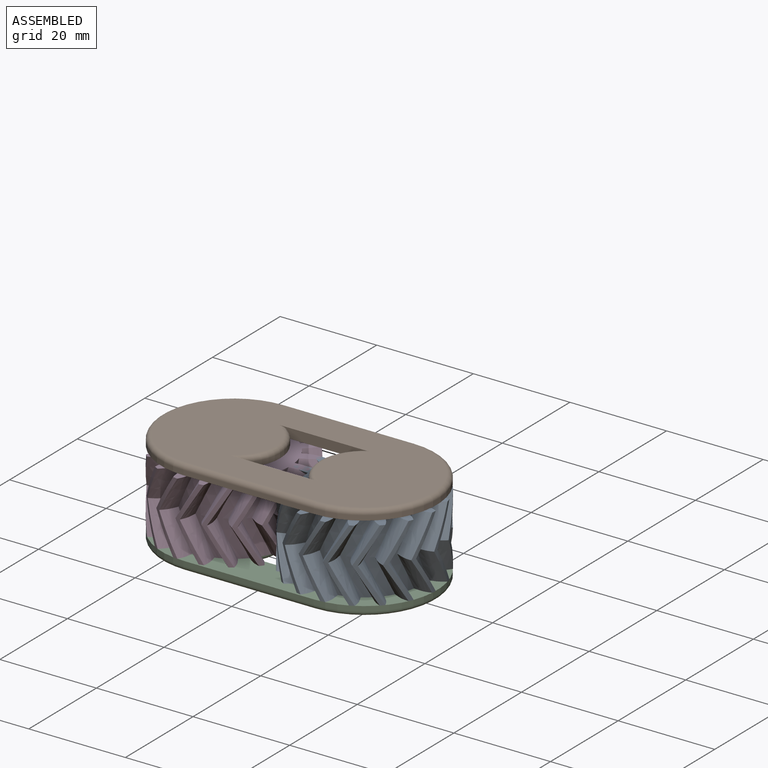
[diagram: assembled view]
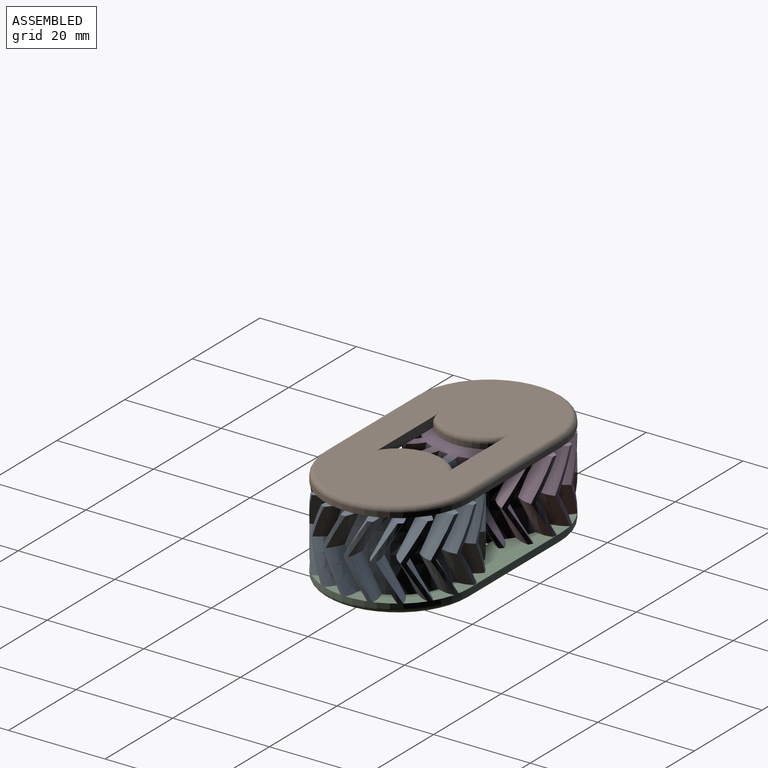
[diagram: assembled view, second angle]
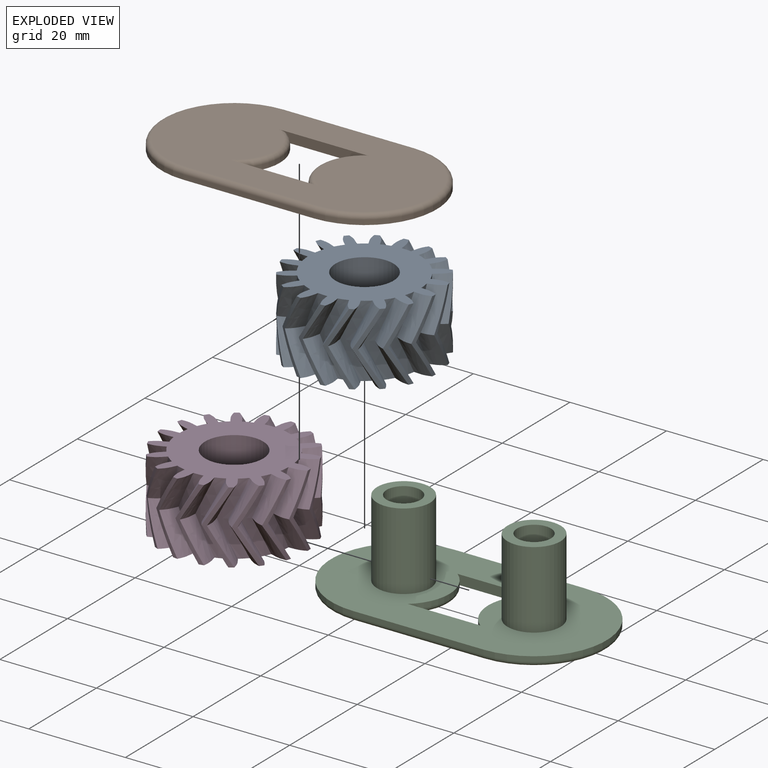
[diagram: exploded view]
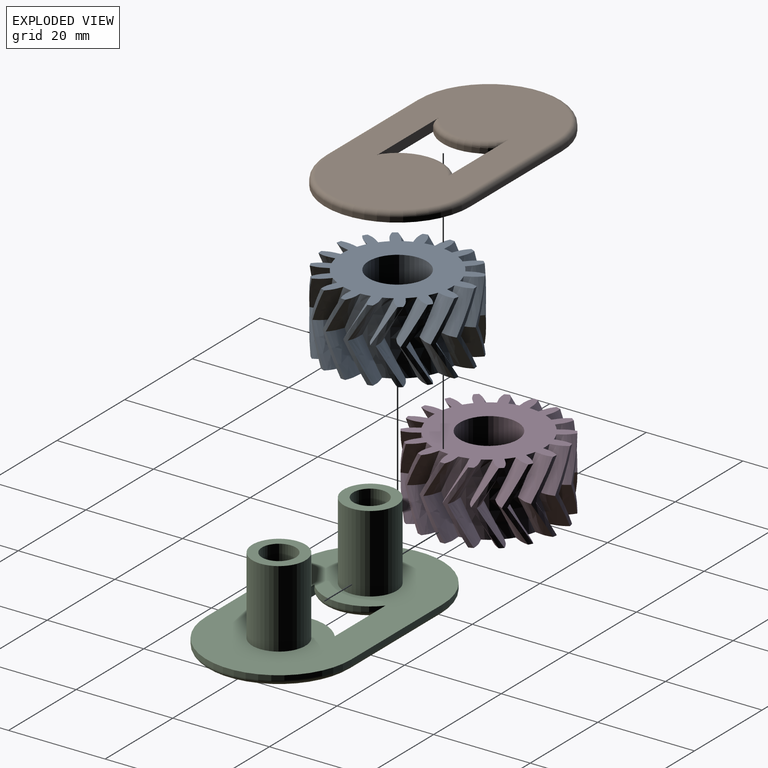
[diagram: exploded view, second angle]
ASSEMBLY  parts=4 mates=3
PART A: 273 faces, bbox 30.4x30.2x15 mm
  f0: bspline ~7.5x4.57mm, area 5.3mm2, adj f1,f15,f25,f145
  f1: bspline ~7.5x4.92mm, area 14.9mm2, adj f0,f2,f25,f146
  f2: bspline ~8.33x4.42mm, area 10.5mm2, adj f1,f3,f25,f147
  f3: bspline ~8.33x5.6mm, area 15.1mm2, adj f2,f4,f25,f148
  f4: bspline ~8.33x4.28mm, area 10.5mm2, adj f3,f5,f25,f149
  f5: bspline ~7.5x4.42mm, area 14.9mm2, adj f4,f6,f25,f150
  f6: bspline ~7.5x4.63mm, area 5.3mm2, adj f5,f14,f25,f151
  f7: cylinder r=15mm len=15mm, axis (0,0,-1), area 14.6mm2, adj f25,f123,f138,f152,f250,f265
  f8: cylinder r=15mm len=15mm, axis (0,0,-1), area 14.6mm2, adj f25,f134,f144,f152,f261,f271
  f9: cylinder r=15mm len=15mm, axis (0,0,-1), area 14.6mm2, adj f25,f67,f124,f152,f194,f251
  f10: cylinder r=15mm len=15mm, axis (0,0,-1), area 14.6mm2, adj f25,f117,f130,f152,f244,f257
  f11: cylinder r=15mm len=15mm, axis (0,0,-1), area 14.6mm2, adj f25,f95,f110,f152,f222,f237
  f12: cylinder r=15mm len=15mm, axis (0,0,-1), area 14.6mm2, adj f25,f96,f133,f152,f223,f260
  f13: cylinder r=15mm len=15mm, axis (0,0,-1), area 14.6mm2, adj f25,f89,f102,f152,f216,f229
  f14: cylinder r=15mm len=15mm, axis (0,0,-1), area 14.6mm2, adj f6,f25,f82,f151,f152,f209
  f15: cylinder r=15mm len=15mm, axis (0,0,-1), area 14.6mm2, adj f0,f25,f53,f145,f152,f180
  f16: cylinder r=15mm len=15mm, axis (0,0,-1), area 14.6mm2, adj f25,f74,f79,f152,f201,f206
  f17: cylinder r=15mm len=15mm, axis (0,0,-1), area 14.6mm2, adj f25,f68,f88,f152,f195,f215
  f18: cylinder r=15mm len=15mm, axis (0,0,-1), area 14.6mm2, adj f25,f32,f61,f152,f159,f188
  f19: cylinder r=15mm len=15mm, axis (0,0,-1), area 14.6mm2, adj f25,f39,f54,f152,f166,f181
  f20: cylinder r=15mm len=15mm, axis (0,0,-1), area 14.6mm2, adj f25,f46,f47,f152,f173,f174
  f21: cylinder r=15mm len=15mm, axis (0,0,-1), area 14.6mm2, adj f25,f40,f60,f152,f167,f187
  f22: cylinder r=15mm len=15mm, axis (0,0,-1), area 14.6mm2, adj f25,f33,f109,f152,f160,f236
  f23: cylinder r=15mm len=15mm, axis (0,0,-1), area 14.6mm2, adj f25,f26,f78,f152,f153,f205
  f24: cylinder r=15mm len=15mm, axis (0,0,-1), area 14.6mm2, adj f25,f103,f116,f152,f230,f243
  f25: plane 30x29.7mm, normal (0,0,1), area 414.1mm2, adj f0,f1,f2,f3,f4,f5,f6,f7
  f26: bspline ~8.33x4.57mm, area 5.3mm2, adj f23,f25,f27,f153
  f27: bspline ~7.5x4.76mm, area 14.9mm2, adj f25,f26,f28,f154
  f28: bspline ~8.33x4.22mm, area 10.5mm2, adj f25,f27,f29,f155
  f29: bspline ~8.33x5.16mm, area 15.1mm2, adj f25,f28,f30,f156
  f30: bspline ~8.33x4.24mm, area 10.5mm2, adj f25,f29,f31,f157
  f31: bspline ~8.33x4.62mm, area 14.9mm2, adj f25,f30,f32,f158
  f32: bspline ~8.33x4.84mm, area 5.3mm2, adj f18,f25,f31,f159
  f33: bspline ~7.5x4.79mm, area 5.3mm2, adj f22,f25,f34,f160
  f34: bspline ~8.33x5.38mm, area 14.9mm2, adj f25,f33,f35,f161
  f35: bspline ~7.5x4.07mm, area 10.5mm2, adj f25,f34,f36,f162
  f36: bspline ~8.33x5.87mm, area 15.1mm2, adj f25,f35,f37,f163
  f37: bspline ~8.33x4.41mm, area 10.5mm2, adj f25,f36,f38,f164
  f38: bspline ~8.33x5.11mm, area 14.9mm2, adj f25,f37,f39,f165
  f39: bspline ~8.33x5.31mm, area 5.3mm2, adj f19,f25,f38,f166
  f40: bspline ~8.33x4.84mm, area 5.3mm2, adj f21,f25,f41,f167
  f41: bspline ~8.33x4.62mm, area 14.9mm2, adj f25,f40,f42,f168
  f42: bspline ~8.33x4.24mm, area 10.5mm2, adj f25,f41,f43,f169
  f43: bspline ~8.33x5.16mm, area 15.1mm2, adj f25,f42,f44,f170
  f44: bspline ~7.5x3.86mm, area 10.5mm2, adj f25,f43,f45,f171
  f45: bspline ~8.33x5.11mm, area 14.9mm2, adj f25,f44,f46,f172
  f46: bspline ~8.33x4.57mm, area 5.3mm2, adj f20,f25,f45,f173
  f47: bspline ~8.33x4.01mm, area 5.3mm2, adj f20,f25,f48,f174
  f48: bspline ~7.5x4.45mm, area 14.9mm2, adj f25,f47,f49,f175
  f49: bspline ~8.33x3.9mm, area 10.5mm2, adj f25,f48,f50,f176
  f50: bspline ~8.33x4.56mm, area 15.1mm2, adj f25,f49,f51,f177
  f51: bspline ~7.5x3.75mm, area 10.5mm2, adj f25,f50,f52,f178
  f52: bspline ~7.5x4.14mm, area 14.9mm2, adj f25,f51,f53,f179
  f53: bspline ~8.33x4.42mm, area 5.3mm2, adj f15,f25,f52,f180
  f54: bspline ~7.5x4.79mm, area 5.3mm2, adj f19,f25,f55,f181
  f55: bspline ~7.5x4.58mm, area 14.9mm2, adj f25,f54,f56,f182
  f56: bspline ~8.33x4.41mm, area 10.5mm2, adj f25,f55,f57,f183
  f57: bspline ~8.33x5.87mm, area 15.1mm2, adj f25,f56,f58,f184
  f58: bspline ~8.33x4.48mm, area 10.5mm2, adj f25,f57,f59,f185
  f59: bspline ~8.33x5.38mm, area 14.9mm2, adj f25,f58,f60,f186
  f60: bspline ~7.5x4.76mm, area 5.3mm2, adj f21,f25,f59,f187
  f61: bspline ~7.5x4.79mm, area 5.3mm2, adj f18,f25,f62,f188
  f62: bspline ~8.33x5.38mm, area 14.9mm2, adj f25,f61,f63,f189
  f63: bspline ~7.5x4.07mm, area 10.5mm2, adj f25,f62,f64,f190
  f64: bspline ~8.33x5.87mm, area 15.1mm2, adj f25,f63,f65,f191
  f65: bspline ~8.33x4.41mm, area 10.5mm2, adj f25,f64,f66,f192
  f66: bspline ~8.33x5.11mm, area 14.9mm2, adj f25,f65,f67,f193
  f67: bspline ~8.33x5.31mm, area 5.3mm2, adj f9,f25,f66,f194
  f68: bspline ~8.33x5.1mm, area 5.3mm2, adj f17,f25,f69,f195
  f69: bspline ~8.33x4.89mm, area 14.9mm2, adj f25,f68,f70,f196
  f70: bspline ~8.33x4.28mm, area 10.5mm2, adj f25,f69,f71,f197
  f71: bspline ~8.33x5.6mm, area 15.1mm2, adj f25,f70,f72,f198
  f72: bspline ~8.33x4.42mm, area 10.5mm2, adj f25,f71,f73,f199
  f73: bspline ~8.33x5.32mm, area 14.9mm2, adj f25,f72,f74,f200
  f74: bspline ~8.33x4.99mm, area 5.3mm2, adj f16,f25,f73,f201
  f75: bspline ~8.33x4.56mm, area 15.1mm2, adj f25,f76,f81,f202
  f76: bspline ~7.5x3.57mm, area 10.5mm2, adj f25,f75,f77,f203
  f77: bspline ~8.33x4.73mm, area 14.9mm2, adj f25,f76,f78,f204
  f78: bspline ~7.5x3.66mm, area 5.3mm2, adj f23,f25,f77,f205
  f79: bspline ~8.33x4.42mm, area 5.3mm2, adj f16,f25,f80,f206
  f80: bspline ~7.5x4.11mm, area 14.9mm2, adj f25,f79,f81,f207
  f81: bspline ~8.33x4.07mm, area 10.5mm2, adj f25,f75,f80,f208
  f82: bspline ~8.33x5.37mm, area 5.3mm2, adj f14,f25,f83,f209
  f83: bspline ~8.33x5.27mm, area 14.9mm2, adj f25,f82,f84,f210
  f84: bspline ~8.33x4.4mm, area 10.5mm2, adj f25,f83,f85,f211
  f85: bspline ~8.33x5.96mm, area 15.1mm2, adj f25,f84,f86,f212
  f86: bspline ~8.33x4.4mm, area 10.5mm2, adj f25,f85,f87,f213
  f87: bspline ~8.33x5.27mm, area 14.9mm2, adj f25,f86,f88,f214
  f88: bspline ~7.5x4.86mm, area 5.3mm2, adj f17,f25,f87,f215
  f89: bspline ~8.33x5.1mm, area 5.3mm2, adj f13,f25,f90,f216
  f90: bspline ~8.33x4.89mm, area 14.9mm2, adj f25,f89,f91,f217
  f91: bspline ~8.33x4.28mm, area 10.5mm2, adj f25,f90,f92,f218
  f92: bspline ~8.33x5.6mm, area 15.1mm2, adj f25,f91,f93,f219
  f93: bspline ~8.33x4.42mm, area 10.5mm2, adj f25,f92,f94,f220
  f94: bspline ~8.33x5.32mm, area 14.9mm2, adj f25,f93,f95,f221
  f95: bspline ~8.33x4.99mm, area 5.3mm2, adj f11,f25,f94,f222
  f96: bspline ~8.33x5.37mm, area 5.3mm2, adj f12,f25,f97,f223
  f97: bspline ~8.33x5.27mm, area 14.9mm2, adj f25,f96,f98,f224
  f98: bspline ~8.33x4.4mm, area 10.5mm2, adj f25,f97,f99,f225
  f99: bspline ~8.33x5.96mm, area 15.1mm2, adj f25,f98,f100,f226
  f100: bspline ~8.33x4.4mm, area 10.5mm2, adj f25,f99,f101,f227
  f101: bspline ~8.33x5.27mm, area 14.9mm2, adj f25,f100,f102,f228
  f102: bspline ~7.5x4.86mm, area 5.3mm2, adj f13,f25,f101,f229
  f103: bspline ~8.33x4.57mm, area 5.3mm2, adj f24,f25,f104,f230
  f104: bspline ~7.5x4.76mm, area 14.9mm2, adj f25,f103,f105,f231
  f105: bspline ~8.33x4.22mm, area 10.5mm2, adj f25,f104,f106,f232
  f106: bspline ~8.33x5.16mm, area 15.1mm2, adj f25,f105,f107,f233
  f107: bspline ~8.33x4.24mm, area 10.5mm2, adj f25,f106,f108,f234
  f108: bspline ~8.33x4.62mm, area 14.9mm2, adj f25,f107,f109,f235
  f109: bspline ~8.33x4.84mm, area 5.3mm2, adj f22,f25,f108,f236
  f110: bspline ~8.33x4.42mm, area 5.3mm2, adj f11,f25,f111,f237
  f111: bspline ~7.5x4.11mm, area 14.9mm2, adj f25,f110,f112,f238
  f112: bspline ~8.33x4.07mm, area 10.5mm2, adj f25,f111,f113,f239
  f113: bspline ~8.33x4.56mm, area 15.1mm2, adj f25,f112,f114,f240
  f114: bspline ~7.5x3.57mm, area 10.5mm2, adj f25,f113,f115,f241
  f115: bspline ~8.33x4.73mm, area 14.9mm2, adj f25,f114,f116,f242
  f116: bspline ~7.5x3.66mm, area 5.3mm2, adj f24,f25,f115,f243
  f117: bspline ~8.33x4.84mm, area 5.3mm2, adj f10,f25,f118,f244
  f118: bspline ~8.33x4.62mm, area 14.9mm2, adj f25,f117,f119,f245
  f119: bspline ~8.33x4.24mm, area 10.5mm2, adj f25,f118,f120,f246
  f120: bspline ~8.33x5.16mm, area 15.1mm2, adj f25,f119,f121,f247
  f121: bspline ~7.5x3.86mm, area 10.5mm2, adj f25,f120,f122,f248
  f122: bspline ~8.33x5.11mm, area 14.9mm2, adj f25,f121,f123,f249
  f123: bspline ~8.33x4.57mm, area 5.3mm2, adj f7,f25,f122,f250
  f124: bspline ~7.5x4.79mm, area 5.3mm2, adj f9,f25,f125,f251
  f125: bspline ~7.5x4.58mm, area 14.9mm2, adj f25,f124,f126,f252
  f126: bspline ~8.33x4.41mm, area 10.5mm2, adj f25,f125,f127,f253
  f127: bspline ~8.33x5.87mm, area 15.1mm2, adj f25,f126,f128,f254
  f128: bspline ~8.33x4.48mm, area 10.5mm2, adj f25,f127,f129,f255
  f129: bspline ~8.33x5.38mm, area 14.9mm2, adj f25,f128,f130,f256
  f130: bspline ~7.5x4.76mm, area 5.3mm2, adj f10,f25,f129,f257
  f131: bspline ~8.33x4.28mm, area 10.5mm2, adj f25,f132,f137,f258
  f132: bspline ~8.33x4.89mm, area 14.9mm2, adj f25,f131,f133,f259
  f133: bspline ~7.5x4.63mm, area 5.3mm2, adj f12,f25,f132,f260
  f134: bspline ~7.5x4.57mm, area 5.3mm2, adj f8,f25,f135,f261
  f135: bspline ~7.5x4.92mm, area 14.9mm2, adj f25,f134,f136,f262
  f136: bspline ~8.33x4.42mm, area 10.5mm2, adj f25,f135,f137,f263
  f137: bspline ~8.33x5.6mm, area 15.1mm2, adj f25,f131,f136,f264
  f138: bspline ~8.33x4.01mm, area 5.3mm2, adj f7,f25,f139,f265
  f139: bspline ~7.5x4.45mm, area 14.9mm2, adj f25,f138,f140,f266
  f140: bspline ~8.33x3.9mm, area 10.5mm2, adj f25,f139,f141,f267
  f141: bspline ~8.33x4.56mm, area 15.1mm2, adj f25,f140,f142,f268
  f142: bspline ~7.5x3.75mm, area 10.5mm2, adj f25,f141,f143,f269
  f143: bspline ~7.5x4.14mm, area 14.9mm2, adj f25,f142,f144,f270
  f144: bspline ~8.33x4.42mm, area 5.3mm2, adj f8,f25,f143,f271
  f145: bspline ~7.5x4.57mm, area 5.3mm2, adj f0,f15,f146,f152
  f146: bspline ~7.5x4.92mm, area 14.9mm2, adj f1,f145,f147,f152
  f147: bspline ~8.33x4.42mm, area 10.5mm2, adj f2,f146,f148,f152
  f148: bspline ~8.33x5.6mm, area 15.1mm2, adj f3,f147,f149,f152
  f149: bspline ~8.33x4.28mm, area 10.5mm2, adj f4,f148,f150,f152
  f150: bspline ~7.5x4.42mm, area 14.9mm2, adj f5,f149,f151,f152
  f151: bspline ~7.5x4.63mm, area 5.3mm2, adj f6,f14,f150,f152
  f152: plane 30x29.7mm, normal (0,0,-1), area 414.1mm2, adj f7,f8,f9,f10,f11,f12,f13,f14
  f153: bspline ~8.33x4.57mm, area 5.3mm2, adj f23,f26,f152,f154
  f154: bspline ~7.5x4.76mm, area 14.9mm2, adj f27,f152,f153,f155
  f155: bspline ~8.33x4.22mm, area 10.5mm2, adj f28,f152,f154,f156
  f156: bspline ~8.33x5.16mm, area 15.1mm2, adj f29,f152,f155,f157
  f157: bspline ~8.33x4.24mm, area 10.5mm2, adj f30,f152,f156,f158
  f158: bspline ~8.33x4.62mm, area 14.9mm2, adj f31,f152,f157,f159
  f159: bspline ~8.33x4.84mm, area 5.3mm2, adj f18,f32,f152,f158
  f160: bspline ~7.5x4.79mm, area 5.3mm2, adj f22,f33,f152,f161
  f161: bspline ~8.33x5.38mm, area 14.9mm2, adj f34,f152,f160,f162
  f162: bspline ~7.5x4.07mm, area 10.5mm2, adj f35,f152,f161,f163
  f163: bspline ~8.33x5.87mm, area 15.1mm2, adj f36,f152,f162,f164
  f164: bspline ~8.33x4.41mm, area 10.5mm2, adj f37,f152,f163,f165
  f165: bspline ~8.33x5.11mm, area 14.9mm2, adj f38,f152,f164,f166
  f166: bspline ~8.33x5.31mm, area 5.3mm2, adj f19,f39,f152,f165
  f167: bspline ~8.33x4.84mm, area 5.3mm2, adj f21,f40,f152,f168
  f168: bspline ~8.33x4.62mm, area 14.9mm2, adj f41,f152,f167,f169
  f169: bspline ~8.33x4.24mm, area 10.5mm2, adj f42,f152,f168,f170
  f170: bspline ~8.33x5.16mm, area 15.1mm2, adj f43,f152,f169,f171
  f171: bspline ~7.5x3.86mm, area 10.5mm2, adj f44,f152,f170,f172
  f172: bspline ~8.33x5.11mm, area 14.9mm2, adj f45,f152,f171,f173
  f173: bspline ~8.33x4.57mm, area 5.3mm2, adj f20,f46,f152,f172
  f174: bspline ~8.33x4.01mm, area 5.3mm2, adj f20,f47,f152,f175
  f175: bspline ~7.5x4.45mm, area 14.9mm2, adj f48,f152,f174,f176
  f176: bspline ~8.33x3.9mm, area 10.5mm2, adj f49,f152,f175,f177
  f177: bspline ~8.33x4.56mm, area 15.1mm2, adj f50,f152,f176,f178
  f178: bspline ~7.5x3.75mm, area 10.5mm2, adj f51,f152,f177,f179
  f179: bspline ~7.5x4.14mm, area 14.9mm2, adj f52,f152,f178,f180
  f180: bspline ~8.33x4.42mm, area 5.3mm2, adj f15,f53,f152,f179
  f181: bspline ~7.5x4.79mm, area 5.3mm2, adj f19,f54,f152,f182
  f182: bspline ~7.5x4.58mm, area 14.9mm2, adj f55,f152,f181,f183
  f183: bspline ~8.33x4.41mm, area 10.5mm2, adj f56,f152,f182,f184
  f184: bspline ~8.33x5.87mm, area 15.1mm2, adj f57,f152,f183,f185
  f185: bspline ~8.33x4.48mm, area 10.5mm2, adj f58,f152,f184,f186
  f186: bspline ~8.33x5.38mm, area 14.9mm2, adj f59,f152,f185,f187
  f187: bspline ~7.5x4.76mm, area 5.3mm2, adj f21,f60,f152,f186
  f188: bspline ~7.5x4.79mm, area 5.3mm2, adj f18,f61,f152,f189
  f189: bspline ~8.33x5.38mm, area 14.9mm2, adj f62,f152,f188,f190
  f190: bspline ~7.5x4.07mm, area 10.5mm2, adj f63,f152,f189,f191
  f191: bspline ~8.33x5.87mm, area 15.1mm2, adj f64,f152,f190,f192
  f192: bspline ~8.33x4.41mm, area 10.5mm2, adj f65,f152,f191,f193
  f193: bspline ~8.33x5.11mm, area 14.9mm2, adj f66,f152,f192,f194
  f194: bspline ~8.33x5.31mm, area 5.3mm2, adj f9,f67,f152,f193
  f195: bspline ~8.33x5.1mm, area 5.3mm2, adj f17,f68,f152,f196
  f196: bspline ~8.33x4.89mm, area 14.9mm2, adj f69,f152,f195,f197
  f197: bspline ~8.33x4.28mm, area 10.5mm2, adj f70,f152,f196,f198
  f198: bspline ~8.33x5.6mm, area 15.1mm2, adj f71,f152,f197,f199
  f199: bspline ~8.33x4.42mm, area 10.5mm2, adj f72,f152,f198,f200
  f200: bspline ~8.33x5.32mm, area 14.9mm2, adj f73,f152,f199,f201
  f201: bspline ~8.33x4.99mm, area 5.3mm2, adj f16,f74,f152,f200
  f202: bspline ~8.33x4.56mm, area 15.1mm2, adj f75,f152,f203,f208
  f203: bspline ~7.5x3.57mm, area 10.5mm2, adj f76,f152,f202,f204
  f204: bspline ~8.33x4.73mm, area 14.9mm2, adj f77,f152,f203,f205
  f205: bspline ~7.5x3.65mm, area 5.3mm2, adj f23,f78,f152,f204
  f206: bspline ~8.33x4.42mm, area 5.3mm2, adj f16,f79,f152,f207
  f207: bspline ~7.5x4.11mm, area 14.9mm2, adj f80,f152,f206,f208
  f208: bspline ~8.33x4.07mm, area 10.5mm2, adj f81,f152,f202,f207
  f209: bspline ~8.33x5.37mm, area 5.3mm2, adj f14,f82,f152,f210
  f210: bspline ~8.33x5.27mm, area 14.9mm2, adj f83,f152,f209,f211
  f211: bspline ~8.33x4.4mm, area 10.5mm2, adj f84,f152,f210,f212
  f212: bspline ~8.33x5.96mm, area 15.1mm2, adj f85,f152,f211,f213
  f213: bspline ~8.33x4.4mm, area 10.5mm2, adj f86,f152,f212,f214
  f214: bspline ~8.33x5.27mm, area 14.9mm2, adj f87,f152,f213,f215
  f215: bspline ~7.5x4.86mm, area 5.3mm2, adj f17,f88,f152,f214
  f216: bspline ~8.33x5.1mm, area 5.3mm2, adj f13,f89,f152,f217
  f217: bspline ~8.33x4.89mm, area 14.9mm2, adj f90,f152,f216,f218
  f218: bspline ~8.33x4.28mm, area 10.5mm2, adj f91,f152,f217,f219
  f219: bspline ~8.33x5.6mm, area 15.1mm2, adj f92,f152,f218,f220
  f220: bspline ~8.33x4.42mm, area 10.5mm2, adj f93,f152,f219,f221
  f221: bspline ~8.33x5.32mm, area 14.9mm2, adj f94,f152,f220,f222
  f222: bspline ~8.33x4.99mm, area 5.3mm2, adj f11,f95,f152,f221
  f223: bspline ~8.33x5.37mm, area 5.3mm2, adj f12,f96,f152,f224
  f224: bspline ~8.33x5.27mm, area 14.9mm2, adj f97,f152,f223,f225
  f225: bspline ~8.33x4.4mm, area 10.5mm2, adj f98,f152,f224,f226
  f226: bspline ~8.33x5.96mm, area 15.1mm2, adj f99,f152,f225,f227
  f227: bspline ~8.33x4.4mm, area 10.5mm2, adj f100,f152,f226,f228
  f228: bspline ~8.33x5.27mm, area 14.9mm2, adj f101,f152,f227,f229
  f229: bspline ~7.5x4.86mm, area 5.3mm2, adj f13,f102,f152,f228
  f230: bspline ~8.33x4.57mm, area 5.3mm2, adj f24,f103,f152,f231
  f231: bspline ~7.5x4.76mm, area 14.9mm2, adj f104,f152,f230,f232
  f232: bspline ~8.33x4.22mm, area 10.5mm2, adj f105,f152,f231,f233
  f233: bspline ~8.33x5.16mm, area 15.1mm2, adj f106,f152,f232,f234
  f234: bspline ~8.33x4.24mm, area 10.5mm2, adj f107,f152,f233,f235
  f235: bspline ~8.33x4.62mm, area 14.9mm2, adj f108,f152,f234,f236
  f236: bspline ~8.33x4.84mm, area 5.3mm2, adj f22,f109,f152,f235
  f237: bspline ~8.33x4.42mm, area 5.3mm2, adj f11,f110,f152,f238
  f238: bspline ~7.5x4.11mm, area 14.9mm2, adj f111,f152,f237,f239
  f239: bspline ~8.33x4.07mm, area 10.5mm2, adj f112,f152,f238,f240
  f240: bspline ~8.33x4.56mm, area 15.1mm2, adj f113,f152,f239,f241
  f241: bspline ~7.5x3.57mm, area 10.5mm2, adj f114,f152,f240,f242
  f242: bspline ~8.33x4.73mm, area 14.9mm2, adj f115,f152,f241,f243
  f243: bspline ~7.5x3.65mm, area 5.3mm2, adj f24,f116,f152,f242
  f244: bspline ~8.33x4.84mm, area 5.3mm2, adj f10,f117,f152,f245
  f245: bspline ~8.33x4.62mm, area 14.9mm2, adj f118,f152,f244,f246
  f246: bspline ~8.33x4.24mm, area 10.5mm2, adj f119,f152,f245,f247
  f247: bspline ~8.33x5.16mm, area 15.1mm2, adj f120,f152,f246,f248
  f248: bspline ~7.5x3.86mm, area 10.5mm2, adj f121,f152,f247,f249
  f249: bspline ~8.33x5.11mm, area 14.9mm2, adj f122,f152,f248,f250
  f250: bspline ~8.33x4.57mm, area 5.3mm2, adj f7,f123,f152,f249
  f251: bspline ~7.5x4.79mm, area 5.3mm2, adj f9,f124,f152,f252
  f252: bspline ~7.5x4.58mm, area 14.9mm2, adj f125,f152,f251,f253
  f253: bspline ~8.33x4.41mm, area 10.5mm2, adj f126,f152,f252,f254
  f254: bspline ~8.33x5.87mm, area 15.1mm2, adj f127,f152,f253,f255
  f255: bspline ~8.33x4.48mm, area 10.5mm2, adj f128,f152,f254,f256
  f256: bspline ~8.33x5.38mm, area 14.9mm2, adj f129,f152,f255,f257
  f257: bspline ~7.5x4.76mm, area 5.3mm2, adj f10,f130,f152,f256
  f258: bspline ~8.33x4.28mm, area 10.5mm2, adj f131,f152,f259,f264
  f259: bspline ~8.33x4.89mm, area 14.9mm2, adj f132,f152,f258,f260
  f260: bspline ~7.5x4.63mm, area 5.3mm2, adj f12,f133,f152,f259
  f261: bspline ~7.5x4.57mm, area 5.3mm2, adj f8,f134,f152,f262
  f262: bspline ~7.5x4.92mm, area 14.9mm2, adj f135,f152,f261,f263
  f263: bspline ~8.33x4.42mm, area 10.5mm2, adj f136,f152,f262,f264
  f264: bspline ~8.33x5.6mm, area 15.1mm2, adj f137,f152,f258,f263
  f265: bspline ~8.33x4.01mm, area 5.3mm2, adj f7,f138,f152,f266
  f266: bspline ~7.5x4.45mm, area 14.9mm2, adj f139,f152,f265,f267
  f267: bspline ~8.33x3.9mm, area 10.5mm2, adj f140,f152,f266,f268
  f268: bspline ~8.33x4.56mm, area 15.1mm2, adj f141,f152,f267,f269
  f269: bspline ~7.5x3.75mm, area 10.5mm2, adj f142,f152,f268,f270
  f270: bspline ~7.5x4.14mm, area 14.9mm2, adj f143,f152,f269,f271
  f271: bspline ~8.33x4.42mm, area 5.3mm2, adj f8,f144,f152,f270
  f272: cylinder r=6mm len=15mm, axis (0,0,-1), area 565.5mm2, adj f25,f152
PART B: 20 faces, bbox 59.5x32.5x5 mm
  f0: plane 57x30mm, normal (0,0,1), area 1301.3mm2, adj f2,f3,f4,f5,f6,f8,f10,f11
  f1: plane 55x28mm, normal (0,0,-1), area 1188mm2, adj f11,f13,f14,f15,f16,f17,f18,f19
  f2: plane 27x1mm, normal (0,1,0), area 27mm2, adj f0,f3,f5,f18
  f3: cylinder r=15mm len=30mm, axis (0,0,-1), area 47.1mm2, adj f0,f2,f4,f16
  f4: plane 27x1mm, normal (0,-1,0), area 27mm2, adj f0,f3,f5,f17
  f5: cylinder r=15mm len=30mm, axis (0,0,-1), area 47.1mm2, adj f0,f2,f4,f19
  f6: cylinder r=3.25mm len=6.5mm, axis (0,0,-1), area 61.3mm2, adj f0,f7
  f7: plane 6.5x6.5mm, normal (0,0,1), area 33.2mm2, adj f6
  f8: cylinder r=3.25mm len=6.5mm, axis (0,0,-1), area 61.3mm2, adj f0,f9
  f9: plane 6.5x6.5mm, normal (0,0,1), area 33.2mm2, adj f8
  f10: cylinder r=9.5mm len=14.73mm, axis (0,0,1), area 16.9mm2, adj f0,f11,f13,f14
  f11: plane 18.51x2mm, normal (0,-1,0), area 30.7mm2, adj f0,f1,f10,f12,f14,f15
  f12: cylinder r=9.5mm len=14.73mm, axis (0,0,1), area 16.9mm2, adj f0,f11,f13,f15
  f13: plane 18.51x2mm, normal (0,1,0), area 30.7mm2, adj f0,f1,f10,f12,f14,f15
  f14: torus R=8.5mm, axis (0,0,1), area 27mm2, adj f1,f10,f11,f13
  f15: torus R=8.5mm, axis (0,0,1), area 27mm2, adj f1,f11,f12,f13
  f16: torus R=14mm, axis (0,0,1), area 72.2mm2, adj f1,f3,f17,f18
  f17: cylinder r=1mm len=27mm, axis (1,0,0), area 42.4mm2, adj f1,f4,f16,f19
  f18: cylinder r=1mm len=27mm, axis (-1,0,0), area 42.4mm2, adj f1,f2,f16,f19
  f19: torus R=14mm, axis (0,0,1), area 72.2mm2, adj f1,f5,f17,f18
PART C: 24 faces, bbox 59.5x32.5x18 mm
  f0: plane 57x30mm, normal (0,0,1), area 1177.6mm2, adj f2,f3,f4,f5,f7,f11,f14,f15
  f1: plane 55x28mm, normal (0,0,-1), area 1188mm2, adj f15,f17,f18,f19,f20,f21,f22,f23
  f2: plane 27x1mm, normal (0,1,0), area 27mm2, adj f0,f3,f5,f21
  f3: cylinder r=15mm len=30mm, axis (0,0,-1), area 47.1mm2, adj f0,f2,f4,f19
  f4: plane 27x1mm, normal (0,-1,0), area 27mm2, adj f0,f3,f5,f18
  f5: cylinder r=15mm len=30mm, axis (0,0,-1), area 47.1mm2, adj f0,f2,f4,f20
  f6: cylinder r=3.5mm len=16mm, axis (0,0,-1), area 351.9mm2, adj f8,f9
  f7: cylinder r=5.5mm len=16mm, axis (0,0,-1), area 552.9mm2, adj f0,f8
  f8: plane 11x11mm, normal (0,0,1), area 56.5mm2, adj f6,f7
  f9: plane 7x7mm, normal (0,0,1), area 38.5mm2, adj f6
  f10: cylinder r=3.5mm len=16mm, axis (0,0,-1), area 351.9mm2, adj f12,f13
  f11: cylinder r=5.5mm len=16mm, axis (0,0,-1), area 552.9mm2, adj f0,f12
  f12: plane 11x11mm, normal (0,0,1), area 56.5mm2, adj f10,f11
  f13: plane 7x7mm, normal (0,0,1), area 38.5mm2, adj f10
  f14: cylinder r=9.5mm len=14.73mm, axis (0,0,1), area 16.9mm2, adj f0,f15,f17,f22
  f15: plane 18.51x2mm, normal (0,-1,0), area 30.7mm2, adj f0,f1,f14,f16,f22,f23
  f16: cylinder r=9.5mm len=14.73mm, axis (0,0,1), area 16.9mm2, adj f0,f15,f17,f23
  f17: plane 18.51x2mm, normal (0,1,0), area 30.7mm2, adj f0,f1,f14,f16,f22,f23
  f18: cylinder r=1mm len=27mm, axis (1,0,0), area 42.4mm2, adj f1,f4,f19,f20
  f19: torus R=14mm, axis (0,0,1), area 72.2mm2, adj f1,f3,f18,f21
  f20: torus R=14mm, axis (0,0,1), area 72.2mm2, adj f1,f5,f18,f21
  f21: cylinder r=1mm len=27mm, axis (-1,0,0), area 42.4mm2, adj f1,f2,f19,f20
  f22: torus R=8.5mm, axis (0,0,1), area 27mm2, adj f1,f14,f15,f17
  f23: torus R=8.5mm, axis (0,0,1), area 27mm2, adj f1,f15,f16,f17
PART D: same geometry as A
PLACE A rot(axis=(0,0,1),66.8deg) t=(13.5,0,7.5)mm
PLACE B rot(axis=(1,0,0),180deg) t=(1.5,0,18)mm
PLACE C t=(1.5,0,-2)mm
PLACE D rot(axis=(0,0,-1),66.8deg) t=(-13.5,0,7.5)mm
MATE revolute D.f272 <-> C.f3  axis (0,0,-1) through (-13.5,0,0)mm
MATE fastened B.f8 <-> C.f10  axis (0,0,-1) through (13.5,0,16)mm
MATE revolute C.f11 <-> A.f272  axis (0,0,1) through (13.5,0,0)mm
